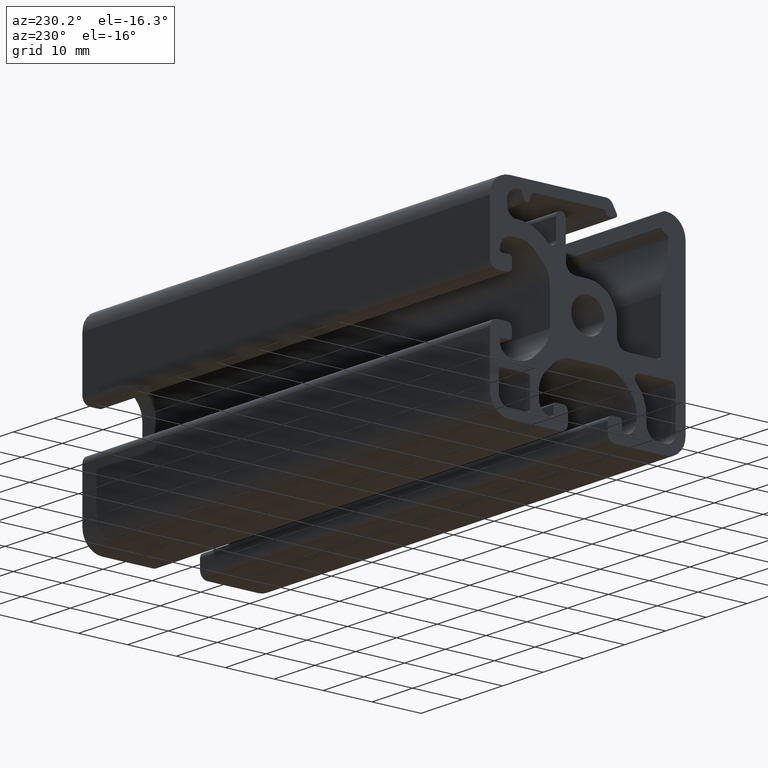
[diagram: clean part render]
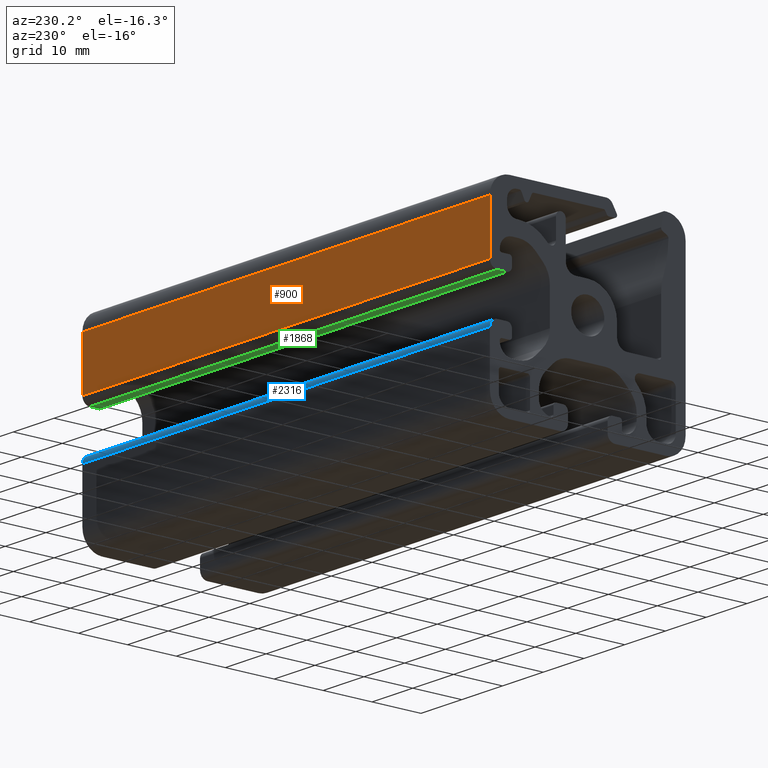
[diagram: same view with three faces highlighted in distinct colors, each labeled with its STEP entity id]
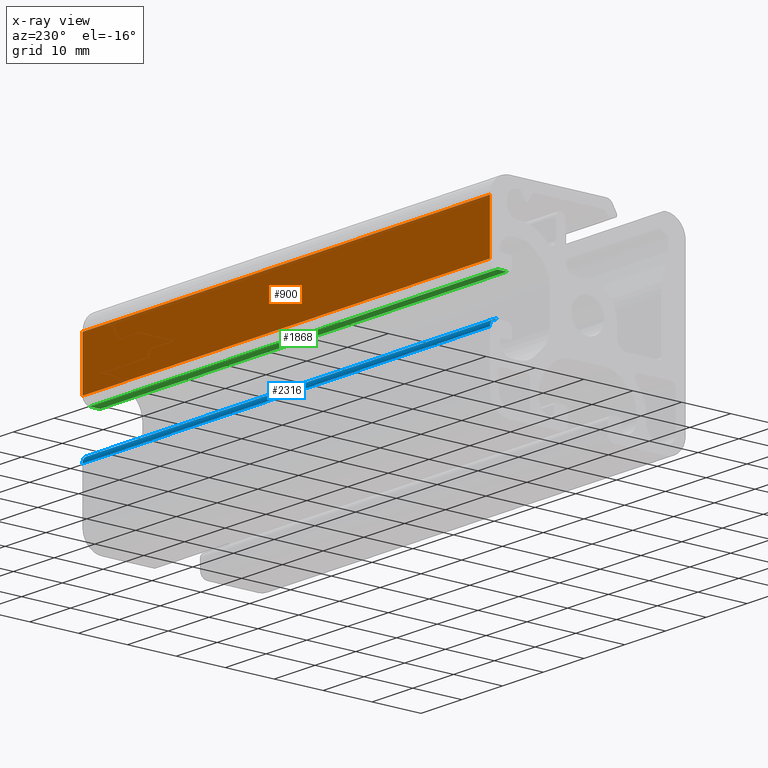
[diagram: x-ray of the same camera — body ghosted, the three highlighted faces saturated]
A machine part, auxiliary view with three faces highlighted in distinct colors.
The next image is the same camera in x-ray (body ghosted, the three faces saturated) — at least one of them is partly hidden behind the body in this view.
Their STEP definitions:

[orange] entity #900 — the highlighted planar face has unit normal (0, -1, -0).
#66 = EDGE_CURVE ( 'NONE', #2259, #4294, #3042, .T. ) ;
#94 = CARTESIAN_POINT ( 'NONE',  ( 59.18367346938774887, 74.89795918367353522, 5.549999999999998934 ) ) ;
#292 = CARTESIAN_POINT ( 'NONE',  ( -40.81632653061225824, 74.89795918367350680, 15.99999999999998579 ) ) ;
#432 = DIRECTION ( 'NONE',  ( 0.0000000000000000000, 2.656035944079325570E-15, -1.000000000000000000 ) ) ;
#659 = CARTESIAN_POINT ( 'NONE',  ( -40.81632653061225824, 74.89795918367353522, 5.549999999999998934 ) ) ;
#894 = FACE_OUTER_BOUND ( 'NONE', #974, .T. ) ;
#900 = ADVANCED_FACE ( 'NONE', ( #894 ), #3689, .F. ) ;
#974 = EDGE_LOOP ( 'NONE', ( #3001, #3771, #4215, #3701 ) ) ;
#1075 = CARTESIAN_POINT ( 'NONE',  ( 59.18367346938774887, 74.89795918367353522, 5.549999999999998934 ) ) ;
#1372 = CARTESIAN_POINT ( 'NONE',  ( 59.18367346938774887, 74.89795918367350680, 15.99999999999998579 ) ) ;
#1404 = DIRECTION ( 'NONE',  ( -1.000000000000000000, -0.0000000000000000000, -0.0000000000000000000 ) ) ;
#1418 = DIRECTION ( 'NONE',  ( 0.0000000000000000000, -1.000000000000000000, -2.656035944079325570E-15 ) ) ;
#1705 = CARTESIAN_POINT ( 'NONE',  ( 59.18367346938774887, 74.89795918367350680, 15.99999999999998579 ) ) ;
#1898 = AXIS2_PLACEMENT_3D ( 'NONE', #3396, #1418, #432 ) ;
#1961 = LINE ( 'NONE', #94, #4197 ) ;
#2078 = EDGE_CURVE ( 'NONE', #2359, #2259, #1961, .T. ) ;
#2146 = CARTESIAN_POINT ( 'NONE',  ( -40.81632653061225824, 74.89795918367353522, 5.549999999999998934 ) ) ;
#2259 = VERTEX_POINT ( 'NONE', #1372 ) ;
#2327 = EDGE_CURVE ( 'NONE', #2359, #3590, #3469, .T. ) ;
#2359 = VERTEX_POINT ( 'NONE', #3440 ) ;
#2690 = DIRECTION ( 'NONE',  ( 0.0000000000000000000, -2.656035944079325175E-15, 1.000000000000000000 ) ) ;
#2859 = DIRECTION ( 'NONE',  ( 0.0000000000000000000, -2.656035944079325175E-15, 1.000000000000000000 ) ) ;
#3001 = ORIENTED_EDGE ( 'NONE', *, *, #3366, .T. ) ;
#3031 = DIRECTION ( 'NONE',  ( -1.000000000000000000, -0.0000000000000000000, -0.0000000000000000000 ) ) ;
#3042 = LINE ( 'NONE', #1705, #3912 ) ;
#3365 = VECTOR ( 'NONE', #1404, 1000.000000000000000 ) ;
#3366 = EDGE_CURVE ( 'NONE', #3590, #4294, #4126, .T. ) ;
#3396 = CARTESIAN_POINT ( 'NONE',  ( 59.18367346938774887, 74.89795918367353522, 5.549999999999998934 ) ) ;
#3440 = CARTESIAN_POINT ( 'NONE',  ( 59.18367346938774887, 74.89795918367353522, 5.549999999999998934 ) ) ;
#3469 = LINE ( 'NONE', #1075, #3365 ) ;
#3590 = VERTEX_POINT ( 'NONE', #659 ) ;
#3665 = VECTOR ( 'NONE', #2859, 1000.000000000000000 ) ;
#3689 = PLANE ( 'NONE',  #1898 ) ;
#3701 = ORIENTED_EDGE ( 'NONE', *, *, #2327, .T. ) ;
#3771 = ORIENTED_EDGE ( 'NONE', *, *, #66, .F. ) ;
#3912 = VECTOR ( 'NONE', #3031, 1000.000000000000000 ) ;
#4126 = LINE ( 'NONE', #2146, #3665 ) ;
#4197 = VECTOR ( 'NONE', #2690, 1000.000000000000000 ) ;
#4215 = ORIENTED_EDGE ( 'NONE', *, *, #2078, .F. ) ;
#4294 = VERTEX_POINT ( 'NONE', #292 ) ;

[blue] entity #2316 — the highlighted cylindrical surface (edge-blend (fillet) strip) has radius 1.5 mm, axis along (-1, -0, -0).
#158 = LINE ( 'NONE', #3862, #1234 ) ;
#174 = VECTOR ( 'NONE', #1661, 1000.000000000000000 ) ;
#385 = DIRECTION ( 'NONE',  ( 0.0000000000000000000, 0.0000000000000000000, 1.000000000000000000 ) ) ;
#453 = ORIENTED_EDGE ( 'NONE', *, *, #1371, .F. ) ;
#465 = DIRECTION ( 'NONE',  ( 0.0000000000000000000, 0.0000000000000000000, -1.000000000000000000 ) ) ;
#547 = ORIENTED_EDGE ( 'NONE', *, *, #2300, .T. ) ;
#603 = CARTESIAN_POINT ( 'NONE',  ( 59.18367346938774887, 74.89795897456458817, -5.549999790891519069 ) ) ;
#688 = EDGE_CURVE ( 'NONE', #3553, #717, #2224, .T. ) ;
#717 = VERTEX_POINT ( 'NONE', #3530 ) ;
#769 = DIRECTION ( 'NONE',  ( -1.000000000000000000, -0.0000000000000000000, -0.0000000000000000000 ) ) ;
#846 = AXIS2_PLACEMENT_3D ( 'NONE', #3738, #769, #385 ) ;
#946 = ORIENTED_EDGE ( 'NONE', *, *, #688, .F. ) ;
#1054 = VERTEX_POINT ( 'NONE', #1471 ) ;
#1213 = CARTESIAN_POINT ( 'NONE',  ( -40.81632653061225824, 74.89795897456458817, -5.549999790891519069 ) ) ;
#1234 = VECTOR ( 'NONE', #1879, 1000.000000000000000 ) ;
#1371 = EDGE_CURVE ( 'NONE', #717, #1054, #2810, .T. ) ;
#1471 = CARTESIAN_POINT ( 'NONE',  ( -40.81632653061225824, 73.39795897456458817, -4.049999790891517293 ) ) ;
#1595 = AXIS2_PLACEMENT_3D ( 'NONE', #1703, #3368, #2380 ) ;
#1605 = CYLINDRICAL_SURFACE ( 'NONE', #846, 1.499999999999994449 ) ;
#1661 = DIRECTION ( 'NONE',  ( -1.000000000000000000, -0.0000000000000000000, -0.0000000000000000000 ) ) ;
#1703 = CARTESIAN_POINT ( 'NONE',  ( -40.81632653061225824, 73.39795897456458817, -5.549999790891519069 ) ) ;
#1784 = VERTEX_POINT ( 'NONE', #1213 ) ;
#1879 = DIRECTION ( 'NONE',  ( -1.000000000000000000, -0.0000000000000000000, -0.0000000000000000000 ) ) ;
#2224 = CIRCLE ( 'NONE', #3858, 1.499999999999994449 ) ;
#2300 = EDGE_CURVE ( 'NONE', #1784, #1054, #2701, .T. ) ;
#2316 = ADVANCED_FACE ( 'NONE', ( #2480 ), #1605, .T. ) ;
#2380 = DIRECTION ( 'NONE',  ( 0.0000000000000000000, 0.0000000000000000000, -1.000000000000000000 ) ) ;
#2436 = CARTESIAN_POINT ( 'NONE',  ( 59.18367346938774887, 73.39795897456458817, -5.549999790891519069 ) ) ;
#2480 = FACE_OUTER_BOUND ( 'NONE', #3502, .T. ) ;
#2701 = CIRCLE ( 'NONE', #1595, 1.499999999999994449 ) ;
#2810 = LINE ( 'NONE', #3975, #174 ) ;
#2984 = EDGE_CURVE ( 'NONE', #3553, #1784, #158, .T. ) ;
#3140 = DIRECTION ( 'NONE',  ( 1.000000000000000000, 0.0000000000000000000, 0.0000000000000000000 ) ) ;
#3368 = DIRECTION ( 'NONE',  ( 1.000000000000000000, 0.0000000000000000000, 0.0000000000000000000 ) ) ;
#3502 = EDGE_LOOP ( 'NONE', ( #547, #453, #946, #4281 ) ) ;
#3530 = CARTESIAN_POINT ( 'NONE',  ( 59.18367346938774887, 73.39795897456458817, -4.049999790891517293 ) ) ;
#3553 = VERTEX_POINT ( 'NONE', #603 ) ;
#3738 = CARTESIAN_POINT ( 'NONE',  ( 59.18367346938774887, 73.39795897456458817, -5.549999790891519069 ) ) ;
#3858 = AXIS2_PLACEMENT_3D ( 'NONE', #2436, #3140, #465 ) ;
#3862 = CARTESIAN_POINT ( 'NONE',  ( 59.18367346938774887, 74.89795897456458817, -5.549999790891519069 ) ) ;
#3975 = CARTESIAN_POINT ( 'NONE',  ( 59.18367346938774887, 73.39795897456458817, -4.049999790891517293 ) ) ;
#4281 = ORIENTED_EDGE ( 'NONE', *, *, #2984, .T. ) ;

[green] entity #1868 — the highlighted planar face has unit normal (0, 0, 1).
#21 = ORIENTED_EDGE ( 'NONE', *, *, #3039, .F. ) ;
#421 = CARTESIAN_POINT ( 'NONE',  ( 59.18367346938774887, 73.39795897456464502, 4.050000209108464588 ) ) ;
#517 = VECTOR ( 'NONE', #933, 1000.000000000000000 ) ;
#617 = DIRECTION ( 'NONE',  ( -1.000000000000000000, -0.0000000000000000000, -0.0000000000000000000 ) ) ;
#627 = ORIENTED_EDGE ( 'NONE', *, *, #3480, .T. ) ;
#666 = CARTESIAN_POINT ( 'NONE',  ( 59.18367346938774887, 71.39795897456463081, 4.050000209108478799 ) ) ;
#720 = VECTOR ( 'NONE', #1208, 1000.000000000000000 ) ;
#830 = VECTOR ( 'NONE', #2576, 1000.000000000000000 ) ;
#899 = CARTESIAN_POINT ( 'NONE',  ( 59.18367346938774887, 71.39795897456463081, 4.050000209108478799 ) ) ;
#911 = VERTEX_POINT ( 'NONE', #421 ) ;
#933 = DIRECTION ( 'NONE',  ( -1.000000000000000000, -0.0000000000000000000, -0.0000000000000000000 ) ) ;
#1084 = FACE_OUTER_BOUND ( 'NONE', #3868, .T. ) ;
#1208 = DIRECTION ( 'NONE',  ( 0.0000000000000000000, 1.000000000000000000, 0.0000000000000000000 ) ) ;
#1531 = ORIENTED_EDGE ( 'NONE', *, *, #3065, .F. ) ;
#1697 = LINE ( 'NONE', #666, #830 ) ;
#1868 = ADVANCED_FACE ( 'NONE', ( #1084 ), #4234, .F. ) ;
#1914 = CARTESIAN_POINT ( 'NONE',  ( 59.18367346938774887, 73.39795897456464502, 4.050000209108464588 ) ) ;
#2434 = CARTESIAN_POINT ( 'NONE',  ( 59.18367346938774887, 71.39795897456463081, 4.050000209108478799 ) ) ;
#2576 = DIRECTION ( 'NONE',  ( 0.0000000000000000000, 1.000000000000000000, 0.0000000000000000000 ) ) ;
#2892 = CARTESIAN_POINT ( 'NONE',  ( 59.18367346938774887, 71.39795897456463081, 4.050000209108478799 ) ) ;
#3039 = EDGE_CURVE ( 'NONE', #3293, #911, #1697, .T. ) ;
#3065 = EDGE_CURVE ( 'NONE', #911, #4171, #4132, .T. ) ;
#3081 = ORIENTED_EDGE ( 'NONE', *, *, #4201, .T. ) ;
#3227 = CARTESIAN_POINT ( 'NONE',  ( -40.81632653061225824, 71.39795897456463081, 4.050000209108478799 ) ) ;
#3235 = DIRECTION ( 'NONE',  ( 1.000000000000000000, 0.0000000000000000000, -0.0000000000000000000 ) ) ;
#3293 = VERTEX_POINT ( 'NONE', #2434 ) ;
#3352 = LINE ( 'NONE', #899, #4070 ) ;
#3379 = VERTEX_POINT ( 'NONE', #3472 ) ;
#3472 = CARTESIAN_POINT ( 'NONE',  ( -40.81632653061225824, 71.39795897456463081, 4.050000209108478799 ) ) ;
#3480 = EDGE_CURVE ( 'NONE', #3379, #4171, #4079, .T. ) ;
#3868 = EDGE_LOOP ( 'NONE', ( #627, #1531, #21, #3081 ) ) ;
#3887 = CARTESIAN_POINT ( 'NONE',  ( -40.81632653061225824, 73.39795897456464502, 4.050000209108464588 ) ) ;
#3897 = DIRECTION ( 'NONE',  ( 0.0000000000000000000, 0.0000000000000000000, 1.000000000000000000 ) ) ;
#4070 = VECTOR ( 'NONE', #617, 1000.000000000000000 ) ;
#4079 = LINE ( 'NONE', #3227, #720 ) ;
#4132 = LINE ( 'NONE', #1914, #517 ) ;
#4171 = VERTEX_POINT ( 'NONE', #3887 ) ;
#4201 = EDGE_CURVE ( 'NONE', #3293, #3379, #3352, .T. ) ;
#4234 = PLANE ( 'NONE',  #4260 ) ;
#4260 = AXIS2_PLACEMENT_3D ( 'NONE', #2892, #3897, #3235 ) ;